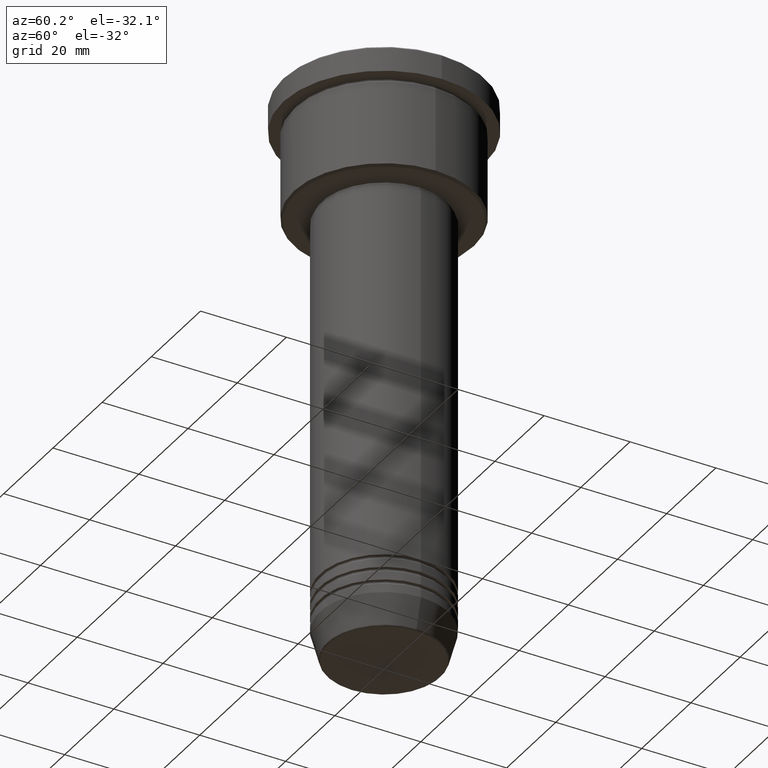
[diagram: clean part render]
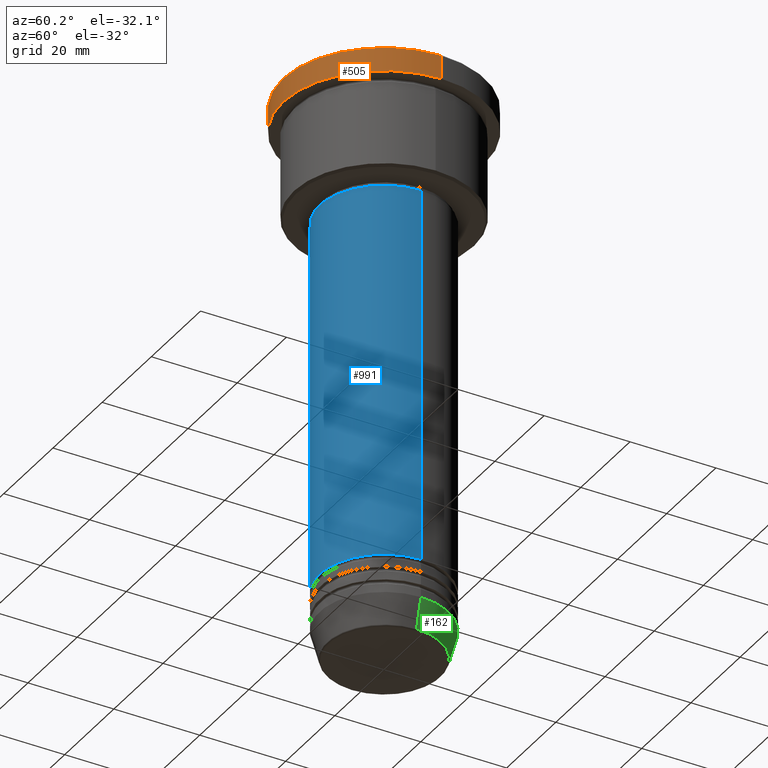
[diagram: same view with three faces highlighted in distinct colors, each labeled with its STEP entity id]
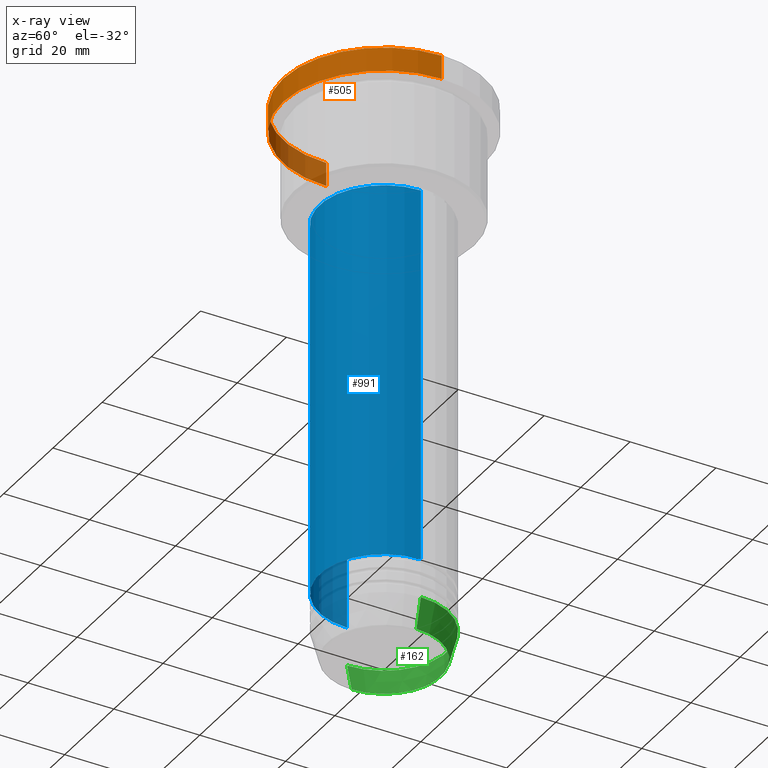
[diagram: x-ray of the same camera — body ghosted, the three highlighted faces saturated]
A machine part, auxiliary view with three faces highlighted in distinct colors.
The next image is the same camera in x-ray (body ghosted, the three faces saturated) — at least one of them is partly hidden behind the body in this view.
Their STEP definitions:

[orange] entity #505 — the highlighted cylindrical surface (partial cylindrical patch) has radius 23.5 mm, axis along (-0, -0, 1).
#1 = CYLINDRICAL_SURFACE ( 'NONE', #310, 23.50000000000000000 ) ;
#19 = VERTEX_POINT ( 'NONE', #973 ) ;
#48 = CARTESIAN_POINT ( 'NONE',  ( 23.50000000000000000, 0.000000000000000000, -5.999999999999994671 ) ) ;
#86 = CARTESIAN_POINT ( 'NONE',  ( 0.000000000000000000, 0.000000000000000000, -0.4999999999999865663 ) ) ;
#143 = EDGE_LOOP ( 'NONE', ( #620, #315, #987, #934 ) ) ;
#145 = CARTESIAN_POINT ( 'NONE',  ( -23.50000000000000000, 2.877919977996280320E-15, 0.000000000000000000 ) ) ;
#173 = DIRECTION ( 'NONE',  ( -0.000000000000000000, -0.000000000000000000, 1.000000000000000000 ) ) ;
#184 = LINE ( 'NONE', #922, #896 ) ;
#195 = CARTESIAN_POINT ( 'NONE',  ( 23.50000000000000000, 0.000000000000000000, -0.4999999999999865663 ) ) ;
#235 = EDGE_CURVE ( 'NONE', #954, #885, #907, .T. ) ;
#303 = EDGE_CURVE ( 'NONE', #702, #19, #383, .T. ) ;
#310 = AXIS2_PLACEMENT_3D ( 'NONE', #1083, #173, #442 ) ;
#315 = ORIENTED_EDGE ( 'NONE', *, *, #235, .T. ) ;
#348 = DIRECTION ( 'NONE',  ( 1.000000000000000000, 0.000000000000000000, 0.000000000000000000 ) ) ;
#352 = FACE_OUTER_BOUND ( 'NONE', #143, .T. ) ;
#383 = CIRCLE ( 'NONE', #399, 23.50000000000000000 ) ;
#399 = AXIS2_PLACEMENT_3D ( 'NONE', #86, #555, #348 ) ;
#429 = CARTESIAN_POINT ( 'NONE',  ( 0.000000000000000000, 0.000000000000000000, -5.999999999999994671 ) ) ;
#441 = DIRECTION ( 'NONE',  ( 1.000000000000000000, 0.000000000000000000, 0.000000000000000000 ) ) ;
#442 = DIRECTION ( 'NONE',  ( 1.000000000000000000, 0.000000000000000000, 0.000000000000000000 ) ) ;
#504 = CARTESIAN_POINT ( 'NONE',  ( -23.50000000000000000, 2.877919977996280320E-15, -5.999999999999994671 ) ) ;
#505 = ADVANCED_FACE ( 'NONE', ( #352 ), #1, .T. ) ;
#555 = DIRECTION ( 'NONE',  ( 0.000000000000000000, 0.000000000000000000, -1.000000000000000000 ) ) ;
#591 = LINE ( 'NONE', #145, #929 ) ;
#610 = DIRECTION ( 'NONE',  ( -0.000000000000000000, -0.000000000000000000, 1.000000000000000000 ) ) ;
#618 = AXIS2_PLACEMENT_3D ( 'NONE', #429, #610, #441 ) ;
#620 = ORIENTED_EDGE ( 'NONE', *, *, #923, .F. ) ;
#702 = VERTEX_POINT ( 'NONE', #195 ) ;
#777 = DIRECTION ( 'NONE',  ( -0.000000000000000000, -0.000000000000000000, 1.000000000000000000 ) ) ;
#869 = EDGE_CURVE ( 'NONE', #885, #702, #184, .T. ) ;
#885 = VERTEX_POINT ( 'NONE', #48 ) ;
#896 = VECTOR ( 'NONE', #913, 1000.000000000000000 ) ;
#907 = CIRCLE ( 'NONE', #618, 23.50000000000000000 ) ;
#913 = DIRECTION ( 'NONE',  ( -0.000000000000000000, -0.000000000000000000, 1.000000000000000000 ) ) ;
#922 = CARTESIAN_POINT ( 'NONE',  ( 23.50000000000000000, 0.000000000000000000, 0.000000000000000000 ) ) ;
#923 = EDGE_CURVE ( 'NONE', #954, #19, #591, .T. ) ;
#929 = VECTOR ( 'NONE', #777, 1000.000000000000000 ) ;
#934 = ORIENTED_EDGE ( 'NONE', *, *, #303, .T. ) ;
#954 = VERTEX_POINT ( 'NONE', #504 ) ;
#973 = CARTESIAN_POINT ( 'NONE',  ( -23.50000000000000000, 2.877919977996280320E-15, -0.4999999999999865663 ) ) ;
#987 = ORIENTED_EDGE ( 'NONE', *, *, #869, .T. ) ;
#1083 = CARTESIAN_POINT ( 'NONE',  ( 0.000000000000000000, 0.000000000000000000, 0.000000000000000000 ) ) ;

[blue] entity #991 — the highlighted cylindrical surface (partial cylindrical patch) has radius 15 mm, axis along (-0, -0, 1).
#5 = DIRECTION ( 'NONE',  ( -0.000000000000000000, -0.000000000000000000, 1.000000000000000000 ) ) ;
#16 = CARTESIAN_POINT ( 'NONE',  ( 15.00000000000000000, 0.000000000000000000, 0.000000000000000000 ) ) ;
#42 = EDGE_CURVE ( 'NONE', #325, #634, #459, .T. ) ;
#49 = EDGE_CURVE ( 'NONE', #325, #673, #482, .T. ) ;
#61 = VECTOR ( 'NONE', #382, 1000.000000000000000 ) ;
#134 = CIRCLE ( 'NONE', #755, 15.00000000000000000 ) ;
#140 = DIRECTION ( 'NONE',  ( 1.000000000000000000, 0.000000000000000000, 0.000000000000000000 ) ) ;
#269 = ORIENTED_EDGE ( 'NONE', *, *, #820, .T. ) ;
#317 = CYLINDRICAL_SURFACE ( 'NONE', #1147, 15.00000000000000000 ) ;
#325 = VERTEX_POINT ( 'NONE', #364 ) ;
#330 = CARTESIAN_POINT ( 'NONE',  ( 15.00000000000000000, 0.000000000000000000, -28.00000000000000355 ) ) ;
#339 = EDGE_LOOP ( 'NONE', ( #710, #1001, #269, #454 ) ) ;
#364 = CARTESIAN_POINT ( 'NONE',  ( -15.00000000000000000, 1.836970198721029589E-15, -115.9999999999999574 ) ) ;
#382 = DIRECTION ( 'NONE',  ( -0.000000000000000000, -0.000000000000000000, 1.000000000000000000 ) ) ;
#388 = CARTESIAN_POINT ( 'NONE',  ( 15.00000000000000000, 0.000000000000000000, -115.9999999999999574 ) ) ;
#437 = DIRECTION ( 'NONE',  ( 1.000000000000000000, 0.000000000000000000, 0.000000000000000000 ) ) ;
#454 = ORIENTED_EDGE ( 'NONE', *, *, #1047, .F. ) ;
#459 = LINE ( 'NONE', #637, #855 ) ;
#482 = CIRCLE ( 'NONE', #497, 15.00000000000000000 ) ;
#497 = AXIS2_PLACEMENT_3D ( 'NONE', #726, #5, #800 ) ;
#517 = CARTESIAN_POINT ( 'NONE',  ( 0.000000000000000000, 0.000000000000000000, 0.000000000000000000 ) ) ;
#524 = VERTEX_POINT ( 'NONE', #330 ) ;
#634 = VERTEX_POINT ( 'NONE', #1073 ) ;
#637 = CARTESIAN_POINT ( 'NONE',  ( -15.00000000000000000, 1.836970198721029589E-15, 0.000000000000000000 ) ) ;
#673 = VERTEX_POINT ( 'NONE', #388 ) ;
#700 = FACE_OUTER_BOUND ( 'NONE', #339, .T. ) ;
#710 = ORIENTED_EDGE ( 'NONE', *, *, #42, .F. ) ;
#726 = CARTESIAN_POINT ( 'NONE',  ( 0.000000000000000000, 0.000000000000000000, -115.9999999999999574 ) ) ;
#755 = AXIS2_PLACEMENT_3D ( 'NONE', #1079, #812, #437 ) ;
#800 = DIRECTION ( 'NONE',  ( 1.000000000000000000, 0.000000000000000000, 0.000000000000000000 ) ) ;
#812 = DIRECTION ( 'NONE',  ( -0.000000000000000000, -0.000000000000000000, 1.000000000000000000 ) ) ;
#820 = EDGE_CURVE ( 'NONE', #673, #524, #1116, .T. ) ;
#855 = VECTOR ( 'NONE', #1177, 1000.000000000000000 ) ;
#950 = DIRECTION ( 'NONE',  ( -0.000000000000000000, -0.000000000000000000, 1.000000000000000000 ) ) ;
#991 = ADVANCED_FACE ( 'NONE', ( #700 ), #317, .T. ) ;
#1001 = ORIENTED_EDGE ( 'NONE', *, *, #49, .T. ) ;
#1047 = EDGE_CURVE ( 'NONE', #634, #524, #134, .T. ) ;
#1073 = CARTESIAN_POINT ( 'NONE',  ( -15.00000000000000000, 1.836970198721029589E-15, -28.00000000000000355 ) ) ;
#1079 = CARTESIAN_POINT ( 'NONE',  ( 0.000000000000000000, 0.000000000000000000, -28.00000000000000355 ) ) ;
#1116 = LINE ( 'NONE', #16, #61 ) ;
#1147 = AXIS2_PLACEMENT_3D ( 'NONE', #517, #950, #140 ) ;
#1177 = DIRECTION ( 'NONE',  ( -0.000000000000000000, -0.000000000000000000, 1.000000000000000000 ) ) ;

[green] entity #162 — the highlighted conical surface has half-angle 15 deg.
#40 = CARTESIAN_POINT ( 'NONE',  ( 15.00000000000000000, 0.000000000000000000, -125.0000000000000000 ) ) ;
#60 = DIRECTION ( 'NONE',  ( -0.000000000000000000, -0.000000000000000000, 1.000000000000000000 ) ) ;
#103 = CARTESIAN_POINT ( 'NONE',  ( -15.00000000000000000, 1.836970198721029589E-15, -125.0000000000000000 ) ) ;
#162 = ADVANCED_FACE ( 'NONE', ( #667 ), #208, .T. ) ;
#206 = EDGE_CURVE ( 'NONE', #453, #471, #355, .T. ) ;
#208 = CONICAL_SURFACE ( 'NONE', #222, 15.00000000000000000, 0.2617993877991500740 ) ;
#210 = VECTOR ( 'NONE', #631, 1000.000000000000000 ) ;
#211 = VERTEX_POINT ( 'NONE', #292 ) ;
#222 = AXIS2_PLACEMENT_3D ( 'NONE', #306, #1019, #688 ) ;
#263 = VECTOR ( 'NONE', #595, 1000.000000000000000 ) ;
#292 = CARTESIAN_POINT ( 'NONE',  ( 13.22365507213719305, 0.000000000000000000, -131.6294095225512422 ) ) ;
#293 = CARTESIAN_POINT ( 'NONE',  ( -13.22365507213719305, 1.728200442216588386E-15, -131.6294095225512422 ) ) ;
#306 = CARTESIAN_POINT ( 'NONE',  ( 0.000000000000000000, 0.000000000000000000, -125.0000000000000000 ) ) ;
#324 = CARTESIAN_POINT ( 'NONE',  ( 15.00000000000000000, 0.000000000000000000, -125.0000000000000000 ) ) ;
#337 = AXIS2_PLACEMENT_3D ( 'NONE', #414, #60, #946 ) ;
#355 = CIRCLE ( 'NONE', #842, 15.00000000000000000 ) ;
#403 = LINE ( 'NONE', #40, #263 ) ;
#414 = CARTESIAN_POINT ( 'NONE',  ( 0.000000000000000000, 0.000000000000000000, -131.6294095225512422 ) ) ;
#453 = VERTEX_POINT ( 'NONE', #324 ) ;
#468 = DIRECTION ( 'NONE',  ( -0.000000000000000000, -0.000000000000000000, 1.000000000000000000 ) ) ;
#471 = VERTEX_POINT ( 'NONE', #1148 ) ;
#595 = DIRECTION ( 'NONE',  ( 0.2588190451025213501, 0.000000000000000000, 0.9659258262890680902 ) ) ;
#631 = DIRECTION ( 'NONE',  ( -0.2588190451025213501, 3.169619151431772337E-17, 0.9659258262890680902 ) ) ;
#639 = CIRCLE ( 'NONE', #337, 13.22365507213719305 ) ;
#640 = EDGE_CURVE ( 'NONE', #827, #471, #1095, .T. ) ;
#667 = FACE_OUTER_BOUND ( 'NONE', #1018, .T. ) ;
#688 = DIRECTION ( 'NONE',  ( 1.000000000000000000, 0.000000000000000000, 0.000000000000000000 ) ) ;
#701 = ORIENTED_EDGE ( 'NONE', *, *, #942, .T. ) ;
#757 = DIRECTION ( 'NONE',  ( 1.000000000000000000, 0.000000000000000000, 0.000000000000000000 ) ) ;
#827 = VERTEX_POINT ( 'NONE', #293 ) ;
#842 = AXIS2_PLACEMENT_3D ( 'NONE', #1105, #468, #757 ) ;
#918 = EDGE_CURVE ( 'NONE', #211, #453, #403, .T. ) ;
#942 = EDGE_CURVE ( 'NONE', #211, #827, #639, .T. ) ;
#946 = DIRECTION ( 'NONE',  ( 1.000000000000000000, 0.000000000000000000, 0.000000000000000000 ) ) ;
#995 = ORIENTED_EDGE ( 'NONE', *, *, #640, .T. ) ;
#1018 = EDGE_LOOP ( 'NONE', ( #701, #995, #1051, #1158 ) ) ;
#1019 = DIRECTION ( 'NONE',  ( -0.000000000000000000, -0.000000000000000000, 1.000000000000000000 ) ) ;
#1051 = ORIENTED_EDGE ( 'NONE', *, *, #206, .F. ) ;
#1095 = LINE ( 'NONE', #103, #210 ) ;
#1105 = CARTESIAN_POINT ( 'NONE',  ( 0.000000000000000000, 0.000000000000000000, -125.0000000000000000 ) ) ;
#1148 = CARTESIAN_POINT ( 'NONE',  ( -15.00000000000000000, 1.836970198721029589E-15, -125.0000000000000000 ) ) ;
#1158 = ORIENTED_EDGE ( 'NONE', *, *, #918, .F. ) ;